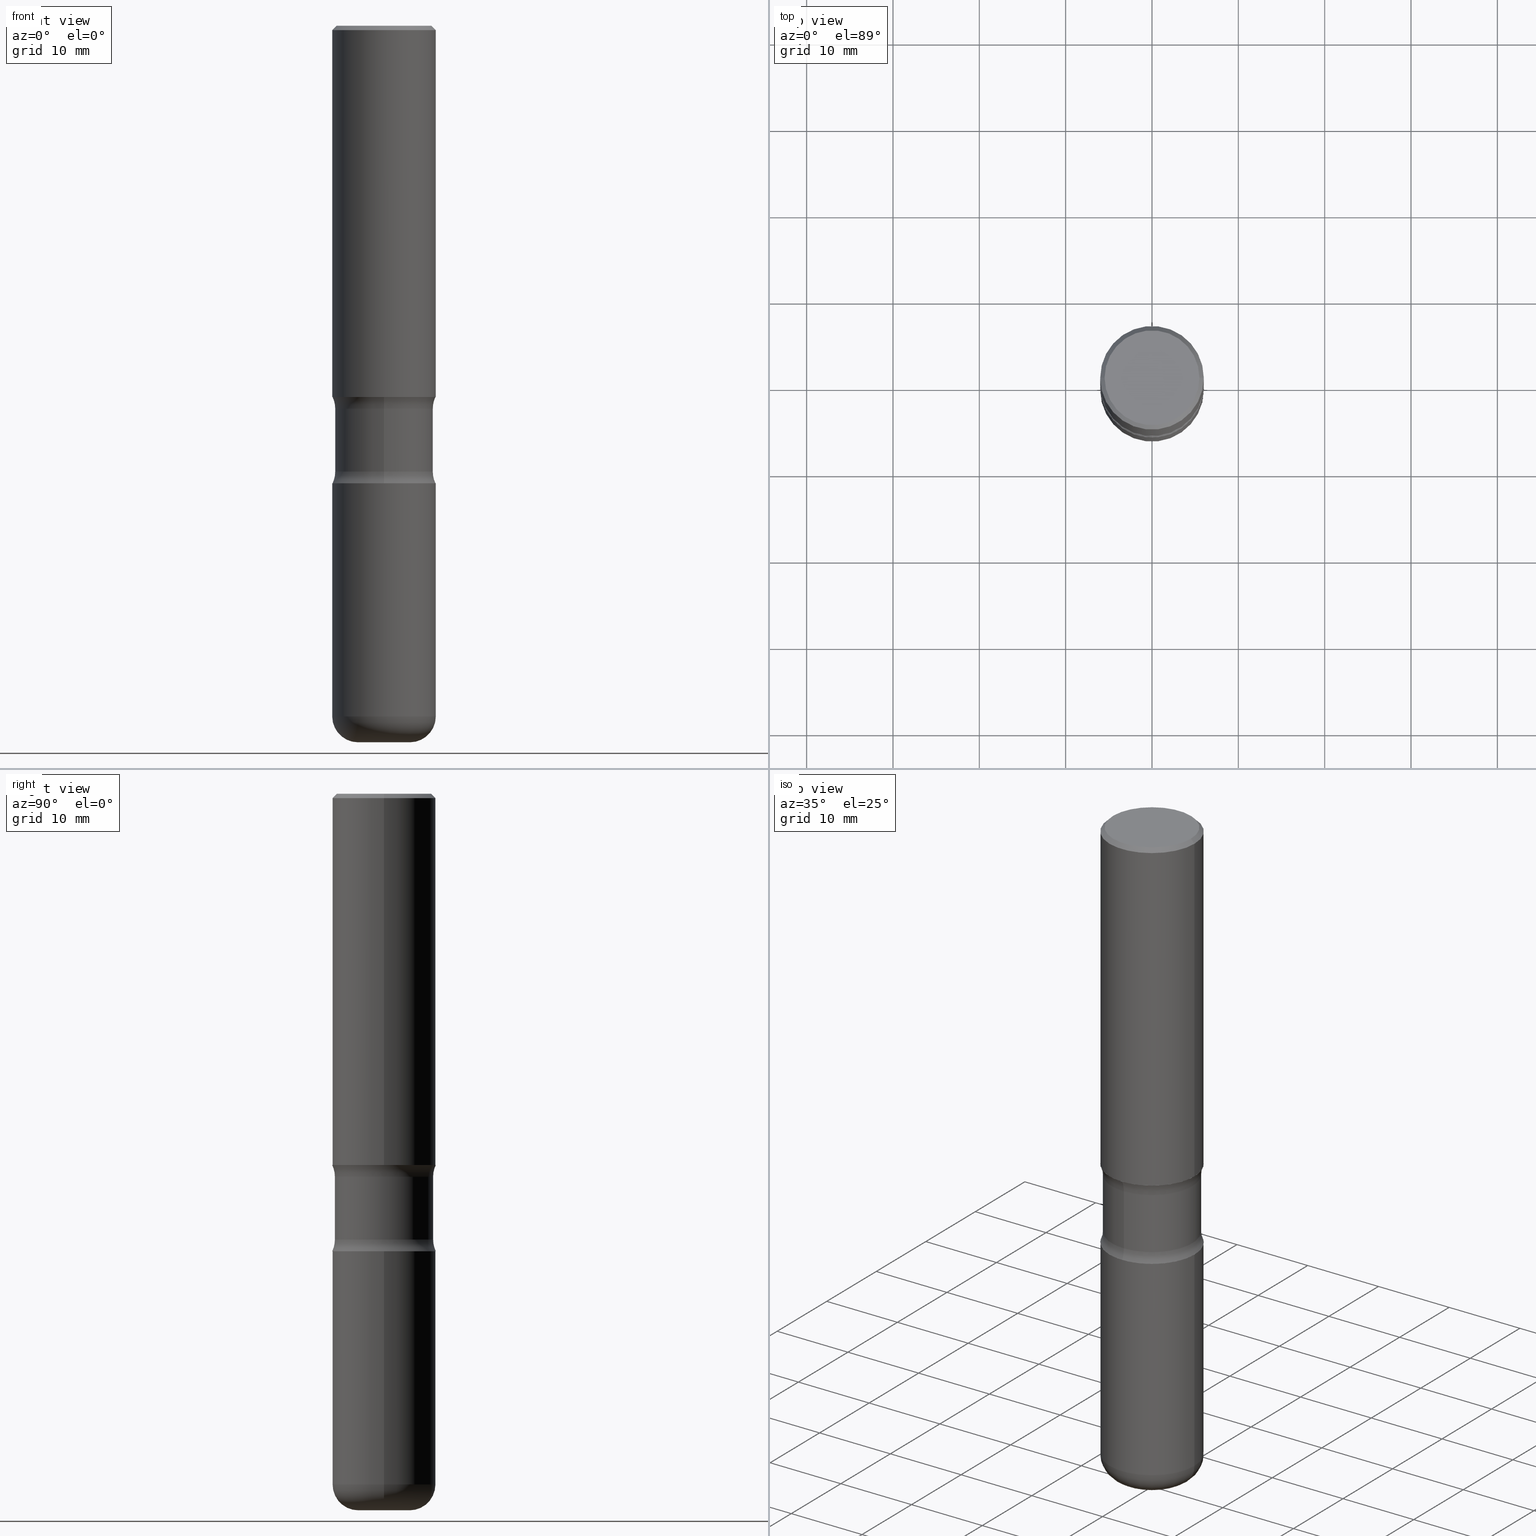
[diagram: canonical four-view strip — front | top / right | iso, engineering-drawing reading convention]
A machine part, canonical four-view strip (front | top / right | iso — engineering-drawing reading convention). The complete STEP part file that produces these views, byte-faithful:
ISO-10303-21;
HEADER;
FILE_DESCRIPTION (( 'STEP AP203' ),
    '1' );
FILE_NAME ('44746.STEP',
    '2024-03-02T02:41:58',
    ( '' ),
    ( '' ),
    'SwSTEP 2.0',
    'SolidWorks 2023',
    '' );
FILE_SCHEMA (( 'CONFIG_CONTROL_DESIGN' ));
ENDSEC;

DATA;
#1 = DIRECTION ( 'NONE',  ( 7.105427357601001859E-15, 1.000000000000000000, -3.491481338843145583E-15 ) ) ;
#2 = EDGE_LOOP ( 'NONE', ( #211, #9 ) ) ;
#3 = CIRCLE ( 'NONE', #320, 0.2362000000000002153 ) ;
#4 = CALENDAR_DATE ( 2024, 1, 3 ) ;
#5 = DIRECTION ( 'NONE',  ( 1.000000000000000000, -6.982962677686267499E-15, 0.000000000000000000 ) ) ;
#6 = ORIENTED_EDGE ( 'NONE', *, *, #171, .T. ) ;
#7 = DIRECTION ( 'NONE',  ( -0.7071067811865471286, 2.468850131082252722E-15, -0.7071067811865479058 ) ) ;
#8 = CARTESIAN_POINT ( 'NONE',  ( 7.702493098841325496E-29, -1.099711877295425582E-14, -3.149700000000000166 ) ) ;
#9 = ORIENTED_EDGE ( 'NONE', *, *, #37, .F. ) ;
#10 = PERSON_AND_ORGANIZATION_ROLE ( 'design_owner' ) ;
#11 = DIRECTION ( 'NONE',  ( 1.000000000000000000, -6.982962677686266711E-15, 4.876176775795935793E-29 ) ) ;
#12 = ORIENTED_EDGE ( 'NONE', *, *, #273, .F. ) ;
#13 = CIRCLE ( 'NONE', #244, 0.2362000000000001598 ) ;
#14 = AXIS2_PLACEMENT_3D ( 'NONE', #481, #521, #474 ) ;
#15 = PRODUCT_RELATED_PRODUCT_CATEGORY ( 'detail', '', ( #74 ) ) ;
#16 = VECTOR ( 'NONE', #369, 39.37007874015748143 ) ;
#17 = DIRECTION ( 'NONE',  ( 6.982962677686265922E-15, 1.000000000000000000, -3.563761628236091094E-15 ) ) ;
#18 = VERTEX_POINT ( 'NONE', #372 ) ;
#19 = ADVANCED_BREP_SHAPE_REPRESENTATION ( '44746', ( #377, #182, #554, #106 ), #340 ) ;
#20 = DIRECTION ( 'NONE',  ( -2.445468806185136597E-29, 3.491481338843145583E-15, 1.000000000000000000 ) ) ;
#21 = EDGE_LOOP ( 'NONE', ( #87, #457, #82, #153 ) ) ;
#22 = LINE ( 'NONE', #192, #16 ) ;
#23 = VERTEX_POINT ( 'NONE', #538 ) ;
#24 = UNCERTAINTY_MEASURE_WITH_UNIT (LENGTH_MEASURE( 1.000000000000000082E-05 ), #226, 'distance_accuracy_value', 'NONE');
#25 = ADVANCED_FACE ( 'NONE', ( #235 ), #410, .T. ) ;
#26 = AXIS2_PLACEMENT_3D ( 'NONE', #453, #322, #280 ) ;
#27 = DIRECTION ( 'NONE',  ( -2.445468806185136597E-29, 3.491481338843145583E-15, 1.000000000000000000 ) ) ;
#28 = AXIS2_PLACEMENT_3D ( 'NONE', #92, #309, #89 ) ;
#29 = ORIENTED_EDGE ( 'NONE', *, *, #132, .T. ) ;
#30 = DIRECTION ( 'NONE',  ( 1.000000000000000000, -6.982962677686266711E-15, 4.876176775795935793E-29 ) ) ;
#31 = PRODUCT_DEFINITION_SHAPE ( 'NONE', 'NONE',  #238 ) ;
#32 = CARTESIAN_POINT ( 'NONE',  ( 0.000000000000000000, 0.000000000000000000, 0.000000000000000000 ) ) ;
#33 = CC_DESIGN_PERSON_AND_ORGANIZATION_ASSIGNMENT ( #223, #10, ( #74 ) ) ;
#34 = CIRCLE ( 'NONE', #311, 0.1180000000000000770 ) ;
#35 = DIRECTION ( 'NONE',  ( 2.394995749868806294E-29, -3.563761628236091094E-15, -1.000000000000000000 ) ) ;
#36 = LOCAL_TIME ( 21, 41, 58.00000000000000000, #477 ) ;
#37 = EDGE_CURVE ( 'NONE', #23, #308, #13, .T. ) ;
#38 = CARTESIAN_POINT ( 'NONE',  ( 0.2362000000000002431, -1.649375784469497906E-15, 1.151752954443001209E-29 ) ) ;
#39 = DIRECTION ( 'NONE',  ( -2.445468806185136597E-29, 3.491481338843145583E-15, 1.000000000000000000 ) ) ;
#40 = EDGE_CURVE ( 'NONE', #393, #228, #328, .T. ) ;
#41 = CARTESIAN_POINT ( 'NONE',  ( -0.2162000000000000033, 1.544631344304202170E-15, -2.134256245051273683E-17 ) ) ;
#42 = VECTOR ( 'NONE', #291, 39.37007874015748143 ) ;
#43 = DIRECTION ( 'NONE',  ( 1.000000000000000000, -6.982962677686258822E-15, 0.000000000000000000 ) ) ;
#44 = ORIENTED_EDGE ( 'NONE', *, *, #80, .T. ) ;
#45 =( LENGTH_UNIT ( ) NAMED_UNIT ( * ) SI_UNIT ( $, .METRE. ) );
#46 = CARTESIAN_POINT ( 'NONE',  ( -0.1182000000000003326, -1.015725725928581524E-14, -3.149700000000000166 ) ) ;
#47 = ORIENTED_EDGE ( 'NONE', *, *, #353, .T. ) ;
#48 = ADVANCED_FACE ( 'NONE', ( #543 ), #71, .T. ) ;
#49 = DIRECTION ( 'NONE',  ( 1.000000000000000000, 0.000000000000000000, 0.000000000000000000 ) ) ;
#50 = CARTESIAN_POINT ( 'NONE',  ( 4.139934141990816676E-29, -5.910728758527559497E-15, -1.692899999999999627 ) ) ;
#51 = CLOSED_SHELL ( 'NONE', ( #534, #339, #60, #121, #493, #498 ) ) ;
#52 = ORIENTED_EDGE ( 'NONE', *, *, #413, .T. ) ;
#53 = CIRCLE ( 'NONE', #122, 0.2362000000000002709 ) ;
#54 = LENGTH_MEASURE_WITH_UNIT ( LENGTH_MEASURE( 0.02539999999999999897 ), #45 );
#55 = DIRECTION ( 'NONE',  ( 0.7071067811865471286, -7.319954787623254468E-15, -0.7071067811865479058 ) ) ;
#56 = ORIENTED_EDGE ( 'NONE', *, *, #296, .T. ) ;
#57 = COORDINATED_UNIVERSAL_TIME_OFFSET ( 5, 0, .BEHIND. ) ;
#58 = DIRECTION ( 'NONE',  ( 2.394995749868806294E-29, -3.563761628236091094E-15, -1.000000000000000000 ) ) ;
#59 = ORIENTED_EDGE ( 'NONE', *, *, #88, .F. ) ;
#60 = ADVANCED_FACE ( 'NONE', ( #490 ), #76, .T. ) ;
#61 = ORIENTED_EDGE ( 'NONE', *, *, #276, .T. ) ;
#62 = AXIS2_PLACEMENT_3D ( 'NONE', #32, #241, #208 ) ;
#63 = DIRECTION ( 'NONE',  ( 2.438088387897960049E-29, -3.491481338843145188E-15, -1.000000000000000000 ) ) ;
#64 = ORIENTED_EDGE ( 'NONE', *, *, #467, .T. ) ;
#65 = CARTESIAN_POINT ( 'NONE',  ( 4.139934141990816676E-29, -5.910728758527559497E-15, -1.692899999999999627 ) ) ;
#66 = EDGE_LOOP ( 'NONE', ( #269, #181 ) ) ;
#67 = EDGE_CURVE ( 'NONE', #237, #18, #494, .T. ) ;
#68 = PLANE ( 'NONE',  #187 ) ;
#69 = ORIENTED_EDGE ( 'NONE', *, *, #475, .F. ) ;
#70 = CIRCLE ( 'NONE', #300, 0.1250000000000000278 ) ;
#71 = CYLINDRICAL_SURFACE ( 'NONE', #319, 0.2362000000000002431 ) ;
#72 = APPROVAL_DATE_TIME ( #199, #542 ) ;
#73 = CC_DESIGN_DATE_AND_TIME_ASSIGNMENT ( #313, #488, ( #238 ) ) ;
#74 = PRODUCT ( '44746', '44746', '', ( #560 ) ) ;
#75 = DIRECTION ( 'NONE',  ( -1.000000000000000000, 6.982962677686265922E-15, -4.876176775795935793E-29 ) ) ;
#76 = CONICAL_SURFACE ( 'NONE', #149, 0.2362000000000000210, 0.7853981633974477239 ) ;
#77 = AXIS2_PLACEMENT_3D ( 'NONE', #125, #514, #78 ) ;
#78 = DIRECTION ( 'NONE',  ( -6.982962677686267499E-15, -1.000000000000000000, 0.000000000000000000 ) ) ;
#79 = DIRECTION ( 'NONE',  ( 1.000000000000000000, -6.982962677686261977E-15, 0.000000000000000000 ) ) ;
#80 = EDGE_CURVE ( 'NONE', #91, #191, #539, .T. ) ;
#81 = DIRECTION ( 'NONE',  ( 1.000000000000000000, -6.860497997771530774E-15, 4.839913701373677961E-29 ) ) ;
#82 = ORIENTED_EDGE ( 'NONE', *, *, #115, .F. ) ;
#83 = DIRECTION ( 'NONE',  ( -1.000000000000000000, 6.982962677686265922E-15, -4.876176775795935793E-29 ) ) ;
#84 = ORIENTED_EDGE ( 'NONE', *, *, #115, .T. ) ;
#85 = PLANE ( 'NONE',  #519 ) ;
#86 = CARTESIAN_POINT ( 'NONE',  ( -1.620449627073586564E-15, -0.2362000000000075151, -2.086599999999998456 ) ) ;
#87 = ORIENTED_EDGE ( 'NONE', *, *, #230, .T. ) ;
#88 = EDGE_CURVE ( 'NONE', #352, #111, #104, .T. ) ;
#89 = DIRECTION ( 'NONE',  ( 1.000000000000000000, -6.982962677686266711E-15, 4.876176775795935793E-29 ) ) ;
#90 = CARTESIAN_POINT ( 'NONE',  ( 0.2362000000000000210, -1.690279253850499166E-15, -0.02000000000000006981 ) ) ;
#91 = VERTEX_POINT ( 'NONE', #552 ) ;
#92 = CARTESIAN_POINT ( 'NONE',  ( 0.000000000000000000, 0.000000000000000000, 0.000000000000000000 ) ) ;
#93 = CARTESIAN_POINT ( 'NONE',  ( 7.931444691155953223E-29, -1.149448382073975340E-14, -3.267699999999999605 ) ) ;
#94 = ORIENTED_EDGE ( 'NONE', *, *, #382, .T. ) ;
#95 = VECTOR ( 'NONE', #551, 39.37007874015748143 ) ;
#96 = LOCAL_TIME ( 21, 41, 58.00000000000000000, #57 ) ;
#97 = CARTESIAN_POINT ( 'NONE',  ( 5.102715210985905155E-29, -7.285324961630105839E-15, -2.086599999999999344 ) ) ;
#98 = EDGE_LOOP ( 'NONE', ( #196, #261, #277, #219 ) ) ;
#99 = APPROVAL_DATE_TIME ( #390, #391 ) ;
#100 = DIRECTION ( 'NONE',  ( 2.394995749868806294E-29, -3.563761628236091094E-15, -1.000000000000000000 ) ) ;
#101 = CARTESIAN_POINT ( 'NONE',  ( 4.890937612370289799E-31, -6.982962677686315028E-17, -0.02000000000000006981 ) ) ;
#102 = CYLINDRICAL_SURFACE ( 'NONE', #207, 0.2362000000000002431 ) ;
#103 = ORIENTED_EDGE ( 'NONE', *, *, #396, .F. ) ;
#104 = CIRCLE ( 'NONE', #77, 0.1250000000000000278 ) ;
#105 = AXIS2_PLACEMENT_3D ( 'NONE', #478, #257, #343 ) ;
#106 = AXIS2_PLACEMENT_3D ( 'NONE', #303, #259, #49 ) ;
#107 = DIRECTION ( 'NONE',  ( 2.394995749868806294E-29, -3.563761628236091094E-15, -1.000000000000000000 ) ) ;
#108 = DIRECTION ( 'NONE',  ( 2.394995749868806294E-29, -3.563761628236091094E-15, -1.000000000000000000 ) ) ;
#109 = FACE_OUTER_BOUND ( 'NONE', #66, .T. ) ;
#110 = ORIENTED_EDGE ( 'NONE', *, *, #67, .T. ) ;
#111 = VERTEX_POINT ( 'NONE', #200 ) ;
#112 = CIRCLE ( 'NONE', #255, 0.2240000000000000324 ) ;
#113 = APPROVAL_PERSON_ORGANIZATION ( #212, #391, #141 ) ;
#114 = FACE_OUTER_BOUND ( 'NONE', #21, .T. ) ;
#115 = EDGE_CURVE ( 'NONE', #527, #253, #186, .T. ) ;
#116 = SECURITY_CLASSIFICATION_LEVEL ( 'unclassified' ) ;
#117 = CARTESIAN_POINT ( 'NONE',  ( 7.702493098841325496E-29, -1.099711877295425582E-14, -3.149700000000000166 ) ) ;
#118 = PERSON ( 'UNSPECIFIED', 'UNSPECIFIED', 'UNSPECIFIED', ('UNSPECIFIED'), ('UNSPECIFIED'), ('UNSPECIFIED') ) ;
#119 = DIRECTION ( 'NONE',  ( 2.438088387897960049E-29, -3.491481338843145188E-15, -1.000000000000000000 ) ) ;
#120 = APPROVAL_ROLE ( '' ) ;
#121 = ADVANCED_FACE ( 'NONE', ( #297 ), #508, .F. ) ;
#122 = AXIS2_PLACEMENT_3D ( 'NONE', #423, #468, #166 ) ;
#123 = CC_DESIGN_APPROVAL ( #391, ( #238 ) ) ;
#124 = DIRECTION ( 'NONE',  ( 1.000000000000000000, -6.982962677686269077E-15, 4.883557194083113462E-29 ) ) ;
#125 = CARTESIAN_POINT ( 'NONE',  ( 2.437053974512556244E-15, 0.3489999999999929270, -2.032737582675858690 ) ) ;
#126 = CARTESIAN_POINT ( 'NONE',  ( 1.649375784469548590E-15, 0.2361999999999929711, -2.086600000000000676 ) ) ;
#127 = DIRECTION ( 'NONE',  ( 1.000000000000000000, -6.982962677686269077E-15, 4.883557194083113462E-29 ) ) ;
#128 = CIRCLE ( 'NONE', #349, 0.2240000000000000324 ) ;
#129 = VERTEX_POINT ( 'NONE', #252 ) ;
#130 = APPROVAL_ROLE ( '' ) ;
#131 = CARTESIAN_POINT ( 'NONE',  ( -0.1182000000000003326, -9.944034444179100274E-15, -3.267700000000000049 ) ) ;
#132 = EDGE_CURVE ( 'NONE', #321, #198, #426, .T. ) ;
#133 = ORIENTED_EDGE ( 'NONE', *, *, #248, .T. ) ;
#134 =( NAMED_UNIT ( * ) PLANE_ANGLE_UNIT ( ) SI_UNIT ( $, .RADIAN. ) );
#135 = CARTESIAN_POINT ( 'NONE',  ( 5.102715210985905155E-29, -7.285324961630105839E-15, -2.086599999999999344 ) ) ;
#136 = EDGE_LOOP ( 'NONE', ( #471, #214, #407, #177 ) ) ;
#137 = CC_DESIGN_PERSON_AND_ORGANIZATION_ASSIGNMENT ( #383, #286, ( #466 ) ) ;
#138 = DIRECTION ( 'NONE',  ( 2.394995749868806294E-29, -3.563761628236091094E-15, -1.000000000000000000 ) ) ;
#139 = ORIENTED_EDGE ( 'NONE', *, *, #379, .F. ) ;
#140 = AXIS2_PLACEMENT_3D ( 'NONE', #147, #414, #489 ) ;
#141 = APPROVAL_ROLE ( '' ) ;
#142 = DIRECTION ( 'NONE',  ( -2.445468806185136877E-29, 3.491481338843145188E-15, 1.000000000000000000 ) ) ;
#143 = ORIENTED_EDGE ( 'NONE', *, *, #296, .F. ) ;
#144 = DIRECTION ( 'NONE',  ( -2.438088387897960049E-29, 3.491481338843145188E-15, 1.000000000000000000 ) ) ;
#145 = EDGE_LOOP ( 'NONE', ( #240, #189, #6, #59 ) ) ;
#146 = APPLICATION_CONTEXT ( 'configuration controlled 3d designs of mechanical parts and assemblies' ) ;
#147 = CARTESIAN_POINT ( 'NONE',  ( 4.159805384262556359E-29, -5.882272008593556915E-15, -1.692899999999999627 ) ) ;
#148 = DIRECTION ( 'NONE',  ( 2.394995749868806294E-29, -3.563761628236091094E-15, -1.000000000000000000 ) ) ;
#149 = AXIS2_PLACEMENT_3D ( 'NONE', #101, #272, #448 ) ;
#150 = AXIS2_PLACEMENT_3D ( 'NONE', #158, #331, #506 ) ;
#151 = VECTOR ( 'NONE', #7, 39.37007874015748143 ) ;
#152 = FACE_OUTER_BOUND ( 'NONE', #232, .T. ) ;
#153 = ORIENTED_EDGE ( 'NONE', *, *, #467, .F. ) ;
#154 = CARTESIAN_POINT ( 'NONE',  ( 0.000000000000000000, 0.000000000000000000, 0.000000000000000000 ) ) ;
#155 = FACE_OUTER_BOUND ( 'NONE', #418, .T. ) ;
#156 = COORDINATED_UNIVERSAL_TIME_OFFSET ( 5, 0, .BEHIND. ) ;
#157 = AXIS2_PLACEMENT_3D ( 'NONE', #50, #351, #5 ) ;
#158 = CARTESIAN_POINT ( 'NONE',  ( 5.102715210985905155E-29, -7.285324961630105839E-15, -2.086599999999999344 ) ) ;
#159 = DATE_AND_TIME ( #4, #36 ) ;
#160 = CARTESIAN_POINT ( 'NONE',  ( -2.394313801222220614E-15, -0.3490000000000059721, -1.746762417324140282 ) ) ;
#161 = PERSON_AND_ORGANIZATION ( #118, #174 ) ;
#162 = DIRECTION ( 'NONE',  ( -2.445468806185136597E-29, 3.491481338843145583E-15, 1.000000000000000000 ) ) ;
#163 = ADVANCED_FACE ( 'NONE', ( #114 ), #205, .T. ) ;
#164 = CIRCLE ( 'NONE', #140, 0.2362000000000001598 ) ;
#165 = LOCAL_TIME ( 21, 41, 58.00000000000000000, #523 ) ;
#166 = DIRECTION ( 'NONE',  ( 1.000000000000000000, -6.982962677686265133E-15, 0.000000000000000000 ) ) ;
#167 = CARTESIAN_POINT ( 'NONE',  ( 0.2362000000000004374, -7.560104542997059178E-15, -1.692899999999999627 ) ) ;
#168 = EDGE_CURVE ( 'NONE', #302, #91, #505, .T. ) ;
#169 = EDGE_LOOP ( 'NONE', ( #346, #434, #535, #281 ) ) ;
#170 = PERSON_AND_ORGANIZATION ( #118, #174 ) ;
#171 = EDGE_CURVE ( 'NONE', #129, #111, #112, .T. ) ;
#172 = FACE_OUTER_BOUND ( 'NONE', #363, .T. ) ;
#173 = AXIS2_PLACEMENT_3D ( 'NONE', #221, #388, #516 ) ;
#174 = ORGANIZATION ( 'UNSPECIFIED', 'UNSPECIFIED', '' ) ;
#175 = ORIENTED_EDGE ( 'NONE', *, *, #536, .T. ) ;
#176 = DIRECTION ( 'NONE',  ( -1.000000000000000000, 6.982962677686267499E-15, 0.000000000000000000 ) ) ;
#177 = ORIENTED_EDGE ( 'NONE', *, *, #132, .F. ) ;
#178 = DIRECTION ( 'NONE',  ( -6.982962677686265922E-15, -1.000000000000000000, 3.563761628236091094E-15 ) ) ;
#179 = PLANE ( 'NONE',  #278 ) ;
#180 = EDGE_CURVE ( 'NONE', #228, #23, #512, .T. ) ;
#181 = ORIENTED_EDGE ( 'NONE', *, *, #334, .F. ) ;
#182 = MANIFOLD_SOLID_BREP ( 'Body-Move/Copy2[2]', #51 ) ;
#183 = CALENDAR_DATE ( 2024, 1, 3 ) ;
#184 = FACE_OUTER_BOUND ( 'NONE', #306, .T. ) ;
#185 = ORIENTED_EDGE ( 'NONE', *, *, #435, .F. ) ;
#186 = CIRCLE ( 'NONE', #150, 0.2362000000000002153 ) ;
#187 = AXIS2_PLACEMENT_3D ( 'NONE', #540, #144, #491 ) ;
#188 = FACE_OUTER_BOUND ( 'NONE', #2, .T. ) ;
#189 = ORIENTED_EDGE ( 'NONE', *, *, #342, .T. ) ;
#190 = DIRECTION ( 'NONE',  ( 2.394995749868806294E-29, -3.563761628236091094E-15, -1.000000000000000000 ) ) ;
#191 = VERTEX_POINT ( 'NONE', #427 ) ;
#192 = CARTESIAN_POINT ( 'NONE',  ( 0.2362000000000002431, -1.649375784469497906E-15, 1.151752954443001209E-29 ) ) ;
#193 = ORIENTED_EDGE ( 'NONE', *, *, #37, .T. ) ;
#194 = CIRCLE ( 'NONE', #26, 0.1250000000000000000 ) ;
#195 = CIRCLE ( 'NONE', #419, 0.2362000000000000210 ) ;
#196 = ORIENTED_EDGE ( 'NONE', *, *, #248, .F. ) ;
#197 = EDGE_CURVE ( 'NONE', #18, #237, #201, .T. ) ;
#198 = VERTEX_POINT ( 'NONE', #289 ) ;
#199 = DATE_AND_TIME ( #292, #555 ) ;
#200 = CARTESIAN_POINT ( 'NONE',  ( 1.564183639801773497E-15, 0.2239999999999929270, -2.032737582675857801 ) ) ;
#201 = CIRCLE ( 'NONE', #381, 0.2162000000000000033 ) ;
#202 = CARTESIAN_POINT ( 'NONE',  ( 0.1182000000000003326, -1.182250496145677426E-14, -3.149700000000000166 ) ) ;
#203 = EDGE_CURVE ( 'NONE', #366, #253, #335, .T. ) ;
#204 = DIRECTION ( 'NONE',  ( 1.000000000000000000, -6.982962677686258822E-15, 0.000000000000000000 ) ) ;
#205 = CYLINDRICAL_SURFACE ( 'NONE', #62, 0.2362000000000002431 ) ;
#206 = CIRCLE ( 'NONE', #294, 0.2362000000000002153 ) ;
#207 = AXIS2_PLACEMENT_3D ( 'NONE', #231, #27, #11 ) ;
#208 = DIRECTION ( 'NONE',  ( 1.000000000000000000, -6.982962677686266711E-15, 4.876176775795935793E-29 ) ) ;
#209 = ADVANCED_FACE ( 'NONE', ( #511 ), #547, .T. ) ;
#210 = CYLINDRICAL_SURFACE ( 'NONE', #424, 0.2240000000000000602 ) ;
#211 = ORIENTED_EDGE ( 'NONE', *, *, #413, .F. ) ;
#212 = PERSON_AND_ORGANIZATION ( #118, #174 ) ;
#213 = CARTESIAN_POINT ( 'NONE',  ( -2.394313801222215092E-15, -0.3490000000000071378, -2.032737582675855581 ) ) ;
#214 = ORIENTED_EDGE ( 'NONE', *, *, #435, .T. ) ;
#215 = APPLICATION_PROTOCOL_DEFINITION ( 'international standard', 'config_control_design', 1994, #146 ) ;
#216 = AXIS2_PLACEMENT_3D ( 'NONE', #374, #323, #546 ) ;
#217 = DIRECTION ( 'NONE',  ( -2.445468806185136597E-29, 3.491481338843145583E-15, 1.000000000000000000 ) ) ;
#218 = AXIS2_PLACEMENT_3D ( 'NONE', #515, #263, #176 ) ;
#219 = ORIENTED_EDGE ( 'NONE', *, *, #171, .F. ) ;
#220 = ADVANCED_FACE ( 'NONE', ( #155 ), #246, .F. ) ;
#221 = CARTESIAN_POINT ( 'NONE',  ( 5.102715210985905155E-29, -7.285324961630105839E-15, -2.086599999999999344 ) ) ;
#222 = EDGE_LOOP ( 'NONE', ( #479, #133, #517, #139 ) ) ;
#223 = PERSON_AND_ORGANIZATION ( #118, #174 ) ;
#224 = LINE ( 'NONE', #90, #287 ) ;
#225 = EDGE_LOOP ( 'NONE', ( #445, #285, #64, #501 ) ) ;
#226 =( CONVERSION_BASED_UNIT ( 'INCH', #54 ) LENGTH_UNIT ( ) NAMED_UNIT ( #455 ) );
#227 = DIRECTION ( 'NONE',  ( 1.000000000000000000, -6.982962677686265133E-15, 0.000000000000000000 ) ) ;
#228 = VERTEX_POINT ( 'NONE', #385 ) ;
#229 = AXIS2_PLACEMENT_3D ( 'NONE', #341, #464, #249 ) ;
#230 = EDGE_CURVE ( 'NONE', #191, #366, #53, .T. ) ;
#231 = CARTESIAN_POINT ( 'NONE',  ( 0.000000000000000000, 0.000000000000000000, 0.000000000000000000 ) ) ;
#232 = EDGE_LOOP ( 'NONE', ( #185, #431, #29, #454 ) ) ;
#233 = ADVANCED_FACE ( 'NONE', ( #469 ), #395, .F. ) ;
#234 = CARTESIAN_POINT ( 'NONE',  ( 5.102715210985905155E-29, -7.285324961630105839E-15, -2.086599999999999344 ) ) ;
#235 = FACE_OUTER_BOUND ( 'NONE', #222, .T. ) ;
#236 = CARTESIAN_POINT ( 'NONE',  ( 4.319343984834906171E-29, -6.030492183638177096E-15, -1.746762417324141614 ) ) ;
#237 = VERTEX_POINT ( 'NONE', #41 ) ;
#238 = PRODUCT_DEFINITION ( 'UNKNOWN', '', #466, #325 ) ;
#239 = AXIS2_PLACEMENT_3D ( 'NONE', #274, #63, #447 ) ;
#240 = ORIENTED_EDGE ( 'NONE', *, *, #276, .F. ) ;
#241 = DIRECTION ( 'NONE',  ( -2.445468806185136597E-29, 3.491481338843145583E-15, 1.000000000000000000 ) ) ;
#242 = COORDINATED_UNIVERSAL_TIME_OFFSET ( 5, 0, .BEHIND. ) ;
#243 = CARTESIAN_POINT ( 'NONE',  ( -0.2362000000000002431, 1.678301941865358366E-15, -1.161852468318209878E-29 ) ) ;
#244 = AXIS2_PLACEMENT_3D ( 'NONE', #315, #108, #415 ) ;
#245 = EDGE_CURVE ( 'NONE', #198, #438, #386, .T. ) ;
#246 = TOROIDAL_SURFACE ( 'NONE', #518, 0.3489999999999999769, 0.1250000000000000000 ) ;
#247 = CC_DESIGN_SECURITY_CLASSIFICATION ( #350, ( #466 ) ) ;
#248 = EDGE_CURVE ( 'NONE', #228, #129, #357, .T. ) ;
#249 = DIRECTION ( 'NONE',  ( 1.000000000000000000, -6.982962677686266711E-15, 4.876655451117825523E-29 ) ) ;
#250 = APPROVAL_DATE_TIME ( #159, #550 ) ;
#251 = CARTESIAN_POINT ( 'NONE',  ( 1.509716530915770718E-15, 0.2162000000000000033, -7.655295466831390880E-16 ) ) ;
#252 = CARTESIAN_POINT ( 'NONE',  ( -1.578600589287179908E-15, -0.2240000000000071378, -2.032737582675856025 ) ) ;
#253 = VERTEX_POINT ( 'NONE', #524 ) ;
#254 = CLOSED_SHELL ( 'NONE', ( #25, #262, #220, #472, #406, #556, #233, #305 ) ) ;
#255 = AXIS2_PLACEMENT_3D ( 'NONE', #548, #384, #507 ) ;
#256 = ORIENTED_EDGE ( 'NONE', *, *, #273, .T. ) ;
#257 = DIRECTION ( 'NONE',  ( -2.445468806185136597E-29, 3.491481338843145583E-15, 1.000000000000000000 ) ) ;
#258 = VERTEX_POINT ( 'NONE', #86 ) ;
#259 = DIRECTION ( 'NONE',  ( 0.000000000000000000, 0.000000000000000000, 1.000000000000000000 ) ) ;
#260 = CARTESIAN_POINT ( 'NONE',  ( 4.288805644831536135E-29, -6.074224824657373494E-15, -1.746762417324141614 ) ) ;
#261 = ORIENTED_EDGE ( 'NONE', *, *, #298, .T. ) ;
#262 = ADVANCED_FACE ( 'NONE', ( #526 ), #553, .F. ) ;
#263 = DIRECTION ( 'NONE',  ( 2.445468806185136597E-29, -3.491481338843145583E-15, -1.000000000000000000 ) ) ;
#264 = AXIS2_PLACEMENT_3D ( 'NONE', #387, #327, #557 ) ;
#265 = AXIS2_PLACEMENT_3D ( 'NONE', #500, #20, #449 ) ;
#266 = ORIENTED_EDGE ( 'NONE', *, *, #40, .F. ) ;
#267 = APPLICATION_PROTOCOL_DEFINITION ( 'international standard', 'config_control_design', 1994, #376 ) ;
#268 = DIRECTION ( 'NONE',  ( 2.438088387897960049E-29, -3.491481338843145188E-15, -1.000000000000000000 ) ) ;
#269 = ORIENTED_EDGE ( 'NONE', *, *, #443, .F. ) ;
#270 = FACE_OUTER_BOUND ( 'NONE', #136, .T. ) ;
#271 = DIRECTION ( 'NONE',  ( -2.445468806185136597E-29, 3.491481338843145583E-15, 1.000000000000000000 ) ) ;
#272 = DIRECTION ( 'NONE',  ( 2.445468806185136597E-29, -3.491481338843145583E-15, -1.000000000000000000 ) ) ;
#273 = EDGE_CURVE ( 'NONE', #91, #302, #465, .T. ) ;
#274 = CARTESIAN_POINT ( 'NONE',  ( -2.556475936767841241E-29, -2.651378309529761210E-14, -3.267699999999999605 ) ) ;
#275 = AXIS2_PLACEMENT_3D ( 'NONE', #378, #148, #499 ) ;
#276 = EDGE_CURVE ( 'NONE', #258, #352, #206, .T. ) ;
#277 = ORIENTED_EDGE ( 'NONE', *, *, #379, .T. ) ;
#278 = AXIS2_PLACEMENT_3D ( 'NONE', #97, #268, #83 ) ;
#279 = AXIS2_PLACEMENT_3D ( 'NONE', #236, #100, #282 ) ;
#280 = DIRECTION ( 'NONE',  ( -6.982962677686266711E-15, -1.000000000000000000, 0.000000000000000000 ) ) ;
#281 = ORIENTED_EDGE ( 'NONE', *, *, #545, .F. ) ;
#282 = DIRECTION ( 'NONE',  ( 6.982962677686265133E-15, 1.000000000000000000, -3.563761628236091094E-15 ) ) ;
#283 = ORIENTED_EDGE ( 'NONE', *, *, #168, .F. ) ;
#284 = ADVANCED_FACE ( 'NONE', ( #430 ), #179, .F. ) ;
#285 = ORIENTED_EDGE ( 'NONE', *, *, #475, .T. ) ;
#286 = PERSON_AND_ORGANIZATION_ROLE ( 'design_supplier' ) ;
#287 = VECTOR ( 'NONE', #55, 39.37007874015748143 ) ;
#288 = APPROVAL_PERSON_ORGANIZATION ( #170, #550, #130 ) ;
#289 = CARTESIAN_POINT ( 'NONE',  ( 0.2362000000000000210, -1.690279253850499166E-15, -0.02000000000000006981 ) ) ;
#290 = DIRECTION ( 'NONE',  ( 1.000000000000000000, -6.982962677686266711E-15, 4.876655451117825523E-29 ) ) ;
#291 = DIRECTION ( 'NONE',  ( -2.445468806185136877E-29, 3.491481338843145188E-15, 1.000000000000000000 ) ) ;
#292 = CALENDAR_DATE ( 2024, 1, 3 ) ;
#293 = EDGE_CURVE ( 'NONE', #18, #198, #224, .T. ) ;
#294 = AXIS2_PLACEMENT_3D ( 'NONE', #135, #138, #345 ) ;
#295 = DIRECTION ( 'NONE',  ( 6.982962677686265133E-15, 1.000000000000000000, -3.563761628236091094E-15 ) ) ;
#296 = EDGE_CURVE ( 'NONE', #302, #366, #34, .T. ) ;
#297 = FACE_OUTER_BOUND ( 'NONE', #389, .T. ) ;
#298 = EDGE_CURVE ( 'NONE', #228, #393, #128, .T. ) ;
#299 = DIRECTION ( 'NONE',  ( 6.860497997771532351E-15, 1.000000000000000000, 0.000000000000000000 ) ) ;
#300 = AXIS2_PLACEMENT_3D ( 'NONE', #213, #440, #299 ) ;
#301 = CARTESIAN_POINT ( 'NONE',  ( -0.2362000000000003264, -9.318816831088897849E-15, -3.149700000000000166 ) ) ;
#302 = VERTEX_POINT ( 'NONE', #131 ) ;
#303 = CARTESIAN_POINT ( 'NONE',  ( 0.000000000000000000, 0.000000000000000000, 0.000000000000000000 ) ) ;
#304 = LINE ( 'NONE', #531, #495 ) ;
#305 = ADVANCED_FACE ( 'NONE', ( #310 ), #210, .T. ) ;
#306 = EDGE_LOOP ( 'NONE', ( #12, #283 ) ) ;
#307 = DIRECTION ( 'NONE',  ( 6.982962677686265922E-15, 1.000000000000000000, -2.439149994343091666E-15 ) ) ;
#308 = VERTEX_POINT ( 'NONE', #558 ) ;
#309 = DIRECTION ( 'NONE',  ( -2.445468806185136597E-29, 3.491481338843145583E-15, 1.000000000000000000 ) ) ;
#310 = FACE_OUTER_BOUND ( 'NONE', #98, .T. ) ;
#311 = AXIS2_PLACEMENT_3D ( 'NONE', #46, #1, #486 ) ;
#312 = EDGE_LOOP ( 'NONE', ( #84, #94 ) ) ;
#313 = DATE_AND_TIME ( #183, #165 ) ;
#314 = CARTESIAN_POINT ( 'NONE',  ( 1.564183639801766791E-15, 0.2239999999999939539, -1.746762417324142502 ) ) ;
#315 = CARTESIAN_POINT ( 'NONE',  ( 4.159805384262556359E-29, -5.882272008593556915E-15, -1.692899999999999627 ) ) ;
#316 = DIRECTION ( 'NONE',  ( 2.394995749868806294E-29, -3.563761628236091094E-15, -1.000000000000000000 ) ) ;
#317 = ORIENTED_EDGE ( 'NONE', *, *, #396, .T. ) ;
#318 = LINE ( 'NONE', #365, #373 ) ;
#319 = AXIS2_PLACEMENT_3D ( 'NONE', #154, #324, #30 ) ;
#320 = AXIS2_PLACEMENT_3D ( 'NONE', #234, #533, #496 ) ;
#321 = VERTEX_POINT ( 'NONE', #167 ) ;
#322 = DIRECTION ( 'NONE',  ( -1.000000000000000000, 6.982962677686265922E-15, -4.883557194083112340E-29 ) ) ;
#323 = DIRECTION ( 'NONE',  ( 2.394995749868806294E-29, -3.563761628236091094E-15, -1.000000000000000000 ) ) ;
#324 = DIRECTION ( 'NONE',  ( -2.445468806185136597E-29, 3.491481338843145583E-15, 1.000000000000000000 ) ) ;
#325 = DESIGN_CONTEXT ( 'detailed design', #376, 'design' ) ;
#326 = DATE_AND_TIME ( #544, #473 ) ;
#327 = DIRECTION ( 'NONE',  ( 2.394995749868806294E-29, -3.563761628236091094E-15, -1.000000000000000000 ) ) ;
#328 = CIRCLE ( 'NONE', #216, 0.2240000000000000324 ) ;
#329 = AXIS2_PLACEMENT_3D ( 'NONE', #355, #392, #43 ) ;
#330 = CIRCLE ( 'NONE', #397, 0.2362000000000002709 ) ;
#331 = DIRECTION ( 'NONE',  ( -2.445468806185136597E-29, 3.491481338843145583E-15, 1.000000000000000000 ) ) ;
#332 = CC_DESIGN_PERSON_AND_ORGANIZATION_ASSIGNMENT ( #462, #510, ( #350 ) ) ;
#333 = PERSON_AND_ORGANIZATION ( #118, #174 ) ;
#334 = EDGE_CURVE ( 'NONE', #356, #321, #409, .T. ) ;
#335 = LINE ( 'NONE', #243, #42 ) ;
#336 = PERSON_AND_ORGANIZATION_ROLE ( 'creator' ) ;
#337 = DIRECTION ( 'NONE',  ( -6.982962677686266711E-15, -1.000000000000000000, 3.491481338843145583E-15 ) ) ;
#338 = TOROIDAL_SURFACE ( 'NONE', #348, 0.1182000000000003326, 0.1180000000000000770 ) ;
#339 = ADVANCED_FACE ( 'NONE', ( #470 ), #371, .T. ) ;
#340 =( GEOMETRIC_REPRESENTATION_CONTEXT ( 3 ) GLOBAL_UNCERTAINTY_ASSIGNED_CONTEXT ( ( #24 ) ) GLOBAL_UNIT_ASSIGNED_CONTEXT ( ( #226, #134, #432 ) ) REPRESENTATION_CONTEXT ( 'NONE', 'WORKASPACE' ) );
#341 = CARTESIAN_POINT ( 'NONE',  ( 5.219257071676098903E-46, -7.451715851902235727E-32, -2.134256245050205639E-17 ) ) ;
#342 = EDGE_CURVE ( 'NONE', #258, #129, #70, .T. ) ;
#343 = DIRECTION ( 'NONE',  ( 1.000000000000000000, -6.982962677686267499E-15, 0.000000000000000000 ) ) ;
#344 = CARTESIAN_POINT ( 'NONE',  ( 4.890937612370289799E-31, -6.982962677686315028E-17, -0.02000000000000006981 ) ) ;
#345 = DIRECTION ( 'NONE',  ( 6.982962677686265133E-15, 1.000000000000000000, -3.469747663417773847E-15 ) ) ;
#346 = ORIENTED_EDGE ( 'NONE', *, *, #197, .F. ) ;
#347 = APPROVAL_STATUS ( 'not_yet_approved' ) ;
#348 = AXIS2_PLACEMENT_3D ( 'NONE', #8, #217, #127 ) ;
#349 = AXIS2_PLACEMENT_3D ( 'NONE', #260, #444, #437 ) ;
#350 = SECURITY_CLASSIFICATION ( '', '', #116 ) ;
#351 = DIRECTION ( 'NONE',  ( -2.445468806185136597E-29, 3.491481338843145583E-15, 1.000000000000000000 ) ) ;
#352 = VERTEX_POINT ( 'NONE', #126 ) ;
#353 = EDGE_CURVE ( 'NONE', #352, #258, #458, .T. ) ;
#354 = PERSON_AND_ORGANIZATION_ROLE ( 'creator' ) ;
#355 = CARTESIAN_POINT ( 'NONE',  ( 7.991058417971171713E-29, -1.140911357093774644E-14, -3.267700000000000049 ) ) ;
#356 = VERTEX_POINT ( 'NONE', #401 ) ;
#357 = LINE ( 'NONE', #398, #439 ) ;
#358 = ORIENTED_EDGE ( 'NONE', *, *, #180, .F. ) ;
#359 = DIRECTION ( 'NONE',  ( 1.000000000000000000, -6.982962677686267499E-15, 0.000000000000000000 ) ) ;
#360 = PLANE ( 'NONE',  #239 ) ;
#361 = AXIS2_PLACEMENT_3D ( 'NONE', #549, #380, #204 ) ;
#362 = CIRCLE ( 'NONE', #513, 0.2240000000000000324 ) ;
#363 = EDGE_LOOP ( 'NONE', ( #143, #522, #44, #69 ) ) ;
#364 = ADVANCED_FACE ( 'NONE', ( #172 ), #338, .T. ) ;
#365 = CARTESIAN_POINT ( 'NONE',  ( -0.2362000000000002431, 1.678301941865358366E-15, -1.161852468318209878E-29 ) ) ;
#366 = VERTEX_POINT ( 'NONE', #301 ) ;
#367 = DIRECTION ( 'NONE',  ( 6.982962677686265922E-15, 1.000000000000000000, -3.658724991514637697E-15 ) ) ;
#368 = EDGE_LOOP ( 'NONE', ( #420, #402, #441, #525 ) ) ;
#369 = DIRECTION ( 'NONE',  ( -2.445468806185136877E-29, 3.491481338843145188E-15, 1.000000000000000000 ) ) ;
#370 = CLOSED_SHELL ( 'NONE', ( #163, #209, #502, #364, #48, #284 ) ) ;
#371 = CONICAL_SURFACE ( 'NONE', #218, 0.2362000000000000210, 0.7853981633974477239 ) ;
#372 = CARTESIAN_POINT ( 'NONE',  ( 0.2162000000000000033, -1.586759460484351988E-15, -2.134256245049122805E-17 ) ) ;
#373 = VECTOR ( 'NONE', #142, 39.37007874015748143 ) ;
#374 = CARTESIAN_POINT ( 'NONE',  ( 4.288805644831536135E-29, -6.074224824657373494E-15, -1.746762417324141614 ) ) ;
#375 = APPROVAL_STATUS ( 'not_yet_approved' ) ;
#376 = APPLICATION_CONTEXT ( 'configuration controlled 3d designs of mechanical parts and assemblies' ) ;
#377 = MANIFOLD_SOLID_BREP ( 'Body-Move/Copy2[1]', #370 ) ;
#378 = CARTESIAN_POINT ( 'NONE',  ( 7.931444691155953223E-29, -1.149448382073975340E-14, -3.267699999999999605 ) ) ;
#379 = EDGE_CURVE ( 'NONE', #393, #111, #304, .T. ) ;
#380 = DIRECTION ( 'NONE',  ( -2.445468806185136597E-29, 3.491481338843145583E-15, 1.000000000000000000 ) ) ;
#381 = AXIS2_PLACEMENT_3D ( 'NONE', #461, #162, #290 ) ;
#382 = EDGE_CURVE ( 'NONE', #253, #527, #3, .T. ) ;
#383 = PERSON_AND_ORGANIZATION ( #118, #174 ) ;
#384 = DIRECTION ( 'NONE',  ( 2.394995749868806294E-29, -3.563761628236091094E-15, -1.000000000000000000 ) ) ;
#385 = CARTESIAN_POINT ( 'NONE',  ( -1.578600589287187205E-15, -0.2240000000000060554, -1.746762417324140948 ) ) ;
#386 = CIRCLE ( 'NONE', #105, 0.2362000000000000210 ) ;
#387 = CARTESIAN_POINT ( 'NONE',  ( 4.970996349593988769E-29, -7.097265336677881413E-15, -2.032737582675857357 ) ) ;
#388 = DIRECTION ( 'NONE',  ( 2.394995749868806294E-29, -3.563761628236091094E-15, -1.000000000000000000 ) ) ;
#389 = EDGE_LOOP ( 'NONE', ( #110, #492 ) ) ;
#390 = DATE_AND_TIME ( #394, #96 ) ;
#391 = APPROVAL ( #442, 'UNSPECIFIED' ) ;
#392 = DIRECTION ( 'NONE',  ( -2.445468806185136597E-29, 3.491481338843145583E-15, 1.000000000000000000 ) ) ;
#393 = VERTEX_POINT ( 'NONE', #314 ) ;
#394 = CALENDAR_DATE ( 2024, 1, 3 ) ;
#395 = TOROIDAL_SURFACE ( 'NONE', #264, 0.3490000000000000324, 0.1250000000000000555 ) ;
#396 = EDGE_CURVE ( 'NONE', #393, #308, #194, .T. ) ;
#397 = AXIS2_PLACEMENT_3D ( 'NONE', #405, #271, #227 ) ;
#398 = CARTESIAN_POINT ( 'NONE',  ( -1.536751551500743867E-15, -0.2240000000000115510, -3.267699999999999161 ) ) ;
#399 = ORIENTED_EDGE ( 'NONE', *, *, #293, .F. ) ;
#400 = DIRECTION ( 'NONE',  ( -2.445468806185136597E-29, 3.491481338843145583E-15, 1.000000000000000000 ) ) ;
#401 = CARTESIAN_POINT ( 'NONE',  ( -0.2362000000000004374, -1.311977250786849481E-15, -1.692899999999999627 ) ) ;
#402 = ORIENTED_EDGE ( 'NONE', *, *, #353, .F. ) ;
#403 = CC_DESIGN_PERSON_AND_ORGANIZATION_ASSIGNMENT ( #404, #354, ( #238 ) ) ;
#404 = PERSON_AND_ORGANIZATION ( #118, #174 ) ;
#405 = CARTESIAN_POINT ( 'NONE',  ( 7.702493098841325496E-29, -1.099711877295425582E-14, -3.149700000000000166 ) ) ;
#406 = ADVANCED_FACE ( 'NONE', ( #188 ), #456, .F. ) ;
#407 = ORIENTED_EDGE ( 'NONE', *, *, #245, .F. ) ;
#408 = CARTESIAN_POINT ( 'NONE',  ( -0.2362000000000000210, 1.579546157692633424E-15, -0.02000000000000006981 ) ) ;
#409 = CIRCLE ( 'NONE', #157, 0.2362000000000004374 ) ;
#410 = CYLINDRICAL_SURFACE ( 'NONE', #275, 0.2240000000000000602 ) ;
#411 = CARTESIAN_POINT ( 'NONE',  ( 4.973714950416923137E-29, -7.093372145566288471E-15, -2.032737582675856913 ) ) ;
#412 = EDGE_LOOP ( 'NONE', ( #399, #482, #459, #175 ) ) ;
#413 = EDGE_CURVE ( 'NONE', #308, #23, #164, .T. ) ;
#414 = DIRECTION ( 'NONE',  ( 2.394995749868806294E-29, -3.563761628236091094E-15, -1.000000000000000000 ) ) ;
#415 = DIRECTION ( 'NONE',  ( 6.982962677686265922E-15, 1.000000000000000000, -3.469747663417774636E-15 ) ) ;
#416 = FACE_OUTER_BOUND ( 'NONE', #532, .T. ) ;
#417 = AXIS2_PLACEMENT_3D ( 'NONE', #65, #316, #17 ) ;
#418 = EDGE_LOOP ( 'NONE', ( #541, #503, #193, #103 ) ) ;
#419 = AXIS2_PLACEMENT_3D ( 'NONE', #344, #400, #359 ) ;
#420 = ORIENTED_EDGE ( 'NONE', *, *, #342, .F. ) ;
#421 = DIRECTION ( 'NONE',  ( 6.860497997771529985E-15, 1.000000000000000000, 0.000000000000000000 ) ) ;
#422 = SHAPE_DEFINITION_REPRESENTATION ( #31, #19 ) ;
#423 = CARTESIAN_POINT ( 'NONE',  ( 7.702493098841325496E-29, -1.099711877295425582E-14, -3.149700000000000166 ) ) ;
#424 = AXIS2_PLACEMENT_3D ( 'NONE', #93, #58, #307 ) ;
#425 = APPROVAL_PERSON_ORGANIZATION ( #333, #542, #120 ) ;
#426 = LINE ( 'NONE', #38, #95 ) ;
#427 = CARTESIAN_POINT ( 'NONE',  ( 0.2362000000000003264, -1.264649455742375392E-14, -3.149700000000000166 ) ) ;
#428 = AXIS2_PLACEMENT_3D ( 'NONE', #251, #119, #75 ) ;
#429 = CIRCLE ( 'NONE', #265, 0.2362000000000004374 ) ;
#430 = FACE_OUTER_BOUND ( 'NONE', #312, .T. ) ;
#431 = ORIENTED_EDGE ( 'NONE', *, *, #334, .T. ) ;
#432 =( NAMED_UNIT ( * ) SI_UNIT ( $, .STERADIAN. ) SOLID_ANGLE_UNIT ( ) );
#433 = DIRECTION ( 'NONE',  ( 2.394995749868806294E-29, -3.563761628236091094E-15, -1.000000000000000000 ) ) ;
#434 = ORIENTED_EDGE ( 'NONE', *, *, #293, .T. ) ;
#435 = EDGE_CURVE ( 'NONE', #356, #438, #318, .T. ) ;
#436 = DIRECTION ( 'NONE',  ( -2.394995749868806294E-29, 3.563761628236091094E-15, 1.000000000000000000 ) ) ;
#437 = DIRECTION ( 'NONE',  ( 6.982962677686265922E-15, 1.000000000000000000, -3.658724991514637697E-15 ) ) ;
#438 = VERTEX_POINT ( 'NONE', #408 ) ;
#439 = VECTOR ( 'NONE', #433, 39.37007874015748143 ) ;
#440 = DIRECTION ( 'NONE',  ( 1.000000000000000000, -6.860497997771530774E-15, 4.839913701373677961E-29 ) ) ;
#441 = ORIENTED_EDGE ( 'NONE', *, *, #88, .T. ) ;
#442 = APPROVAL_STATUS ( 'not_yet_approved' ) ;
#443 = EDGE_CURVE ( 'NONE', #321, #356, #429, .T. ) ;
#444 = DIRECTION ( 'NONE',  ( 2.394995749868806294E-29, -3.563761628236091094E-15, -1.000000000000000000 ) ) ;
#445 = ORIENTED_EDGE ( 'NONE', *, *, #203, .F. ) ;
#446 = CARTESIAN_POINT ( 'NONE',  ( -0.2362000000000000210, 1.579546157692633424E-15, -0.02000000000000006981 ) ) ;
#447 = DIRECTION ( 'NONE',  ( -1.000000000000000000, 6.982962677686265922E-15, -4.876176775795935793E-29 ) ) ;
#448 = DIRECTION ( 'NONE',  ( -1.000000000000000000, 6.982962677686267499E-15, 0.000000000000000000 ) ) ;
#449 = DIRECTION ( 'NONE',  ( 1.000000000000000000, -6.982962677686267499E-15, 0.000000000000000000 ) ) ;
#450 = AXIS2_PLACEMENT_3D ( 'NONE', #160, #81, #421 ) ;
#451 = EDGE_LOOP ( 'NONE', ( #256, #56, #476, #559 ) ) ;
#452 = CC_DESIGN_PERSON_AND_ORGANIZATION_ASSIGNMENT ( #161, #336, ( #466 ) ) ;
#453 = CARTESIAN_POINT ( 'NONE',  ( 2.437053974512549538E-15, 0.3489999999999939262, -1.746762417324142946 ) ) ;
#454 = ORIENTED_EDGE ( 'NONE', *, *, #536, .F. ) ;
#455 = DIMENSIONAL_EXPONENTS ( 1.000000000000000000, 0.000000000000000000, 0.000000000000000000, 0.000000000000000000, 0.000000000000000000, 0.000000000000000000, 0.000000000000000000 ) ;
#456 = PLANE ( 'NONE',  #417 ) ;
#457 = ORIENTED_EDGE ( 'NONE', *, *, #203, .T. ) ;
#458 = CIRCLE ( 'NONE', #173, 0.2362000000000002153 ) ;
#459 = ORIENTED_EDGE ( 'NONE', *, *, #545, .T. ) ;
#460 = CC_DESIGN_DATE_AND_TIME_ASSIGNMENT ( #326, #504, ( #350 ) ) ;
#461 = CARTESIAN_POINT ( 'NONE',  ( 5.219257071676098903E-46, -7.451715851902235727E-32, -2.134256245050205639E-17 ) ) ;
#462 = PERSON_AND_ORGANIZATION ( #118, #174 ) ;
#463 = CARTESIAN_POINT ( 'NONE',  ( 4.319343984834906171E-29, -6.030492183638177096E-15, -1.746762417324141614 ) ) ;
#464 = DIRECTION ( 'NONE',  ( -2.445468806185136597E-29, 3.491481338843145583E-15, 1.000000000000000000 ) ) ;
#465 = CIRCLE ( 'NONE', #329, 0.1182000000000003326 ) ;
#466 = PRODUCT_DEFINITION_FORMATION_WITH_SPECIFIED_SOURCE ( 'ANY', '', #74, .NOT_KNOWN. ) ;
#467 = EDGE_CURVE ( 'NONE', #191, #527, #22, .T. ) ;
#468 = DIRECTION ( 'NONE',  ( -2.445468806185136597E-29, 3.491481338843145583E-15, 1.000000000000000000 ) ) ;
#469 = FACE_OUTER_BOUND ( 'NONE', #368, .T. ) ;
#470 = FACE_OUTER_BOUND ( 'NONE', #169, .T. ) ;
#471 = ORIENTED_EDGE ( 'NONE', *, *, #443, .T. ) ;
#472 = ADVANCED_FACE ( 'NONE', ( #416 ), #530, .F. ) ;
#473 = LOCAL_TIME ( 21, 41, 58.00000000000000000, #242 ) ;
#474 = DIRECTION ( 'NONE',  ( 6.982962677686265133E-15, 1.000000000000000000, -3.563761628236091094E-15 ) ) ;
#475 = EDGE_CURVE ( 'NONE', #366, #191, #330, .T. ) ;
#476 = ORIENTED_EDGE ( 'NONE', *, *, #230, .F. ) ;
#477 = COORDINATED_UNIVERSAL_TIME_OFFSET ( 5, 0, .BEHIND. ) ;
#478 = CARTESIAN_POINT ( 'NONE',  ( 4.890937612370289799E-31, -6.982962677686315028E-17, -0.02000000000000006981 ) ) ;
#479 = ORIENTED_EDGE ( 'NONE', *, *, #40, .T. ) ;
#480 = FACE_OUTER_BOUND ( 'NONE', #487, .T. ) ;
#481 = CARTESIAN_POINT ( 'NONE',  ( 4.970996349593988769E-29, -7.097265336677881413E-15, -2.032737582675857357 ) ) ;
#482 = ORIENTED_EDGE ( 'NONE', *, *, #67, .F. ) ;
#483 = LINE ( 'NONE', #446, #151 ) ;
#484 = AXIS2_PLACEMENT_3D ( 'NONE', #202, #337, #79 ) ;
#485 = CC_DESIGN_APPROVAL ( #550, ( #466 ) ) ;
#486 = DIRECTION ( 'NONE',  ( -1.000000000000000000, 7.105427357600993181E-15, 0.000000000000000000 ) ) ;
#487 = EDGE_LOOP ( 'NONE', ( #47, #61 ) ) ;
#488 = DATE_TIME_ROLE ( 'creation_date' ) ;
#489 = DIRECTION ( 'NONE',  ( 6.982962677686265922E-15, 1.000000000000000000, -3.469747663417774636E-15 ) ) ;
#490 = FACE_OUTER_BOUND ( 'NONE', #412, .T. ) ;
#491 = DIRECTION ( 'NONE',  ( 1.000000000000000000, -6.982962677686265922E-15, 4.876176775795935793E-29 ) ) ;
#492 = ORIENTED_EDGE ( 'NONE', *, *, #197, .T. ) ;
#493 = ADVANCED_FACE ( 'NONE', ( #109 ), #68, .F. ) ;
#494 = CIRCLE ( 'NONE', #229, 0.2162000000000000033 ) ;
#495 = VECTOR ( 'NONE', #107, 39.37007874015748143 ) ;
#496 = DIRECTION ( 'NONE',  ( 1.000000000000000000, -6.982962677686266711E-15, 0.000000000000000000 ) ) ;
#497 = CC_DESIGN_APPROVAL ( #542, ( #350 ) ) ;
#498 = ADVANCED_FACE ( 'NONE', ( #152 ), #102, .T. ) ;
#499 = DIRECTION ( 'NONE',  ( 6.982962677686265922E-15, 1.000000000000000000, -2.439149994343091666E-15 ) ) ;
#500 = CARTESIAN_POINT ( 'NONE',  ( 4.139934141990816676E-29, -5.910728758527559497E-15, -1.692899999999999627 ) ) ;
#501 = ORIENTED_EDGE ( 'NONE', *, *, #382, .F. ) ;
#502 = ADVANCED_FACE ( 'NONE', ( #184 ), #360, .T. ) ;
#503 = ORIENTED_EDGE ( 'NONE', *, *, #180, .T. ) ;
#504 = DATE_TIME_ROLE ( 'classification_date' ) ;
#505 = CIRCLE ( 'NONE', #361, 0.1182000000000003326 ) ;
#506 = DIRECTION ( 'NONE',  ( 1.000000000000000000, -6.982962677686266711E-15, 0.000000000000000000 ) ) ;
#507 = DIRECTION ( 'NONE',  ( 6.982962677686265922E-15, 1.000000000000000000, -3.658724991514637697E-15 ) ) ;
#508 = PLANE ( 'NONE',  #428 ) ;
#509 = EDGE_CURVE ( 'NONE', #111, #129, #362, .T. ) ;
#510 = PERSON_AND_ORGANIZATION_ROLE ( 'classification_officer' ) ;
#511 = FACE_OUTER_BOUND ( 'NONE', #451, .T. ) ;
#512 = CIRCLE ( 'NONE', #450, 0.1250000000000000000 ) ;
#513 = AXIS2_PLACEMENT_3D ( 'NONE', #411, #190, #367 ) ;
#514 = DIRECTION ( 'NONE',  ( -1.000000000000000000, 6.982962677686265922E-15, -4.883557194083112340E-29 ) ) ;
#515 = CARTESIAN_POINT ( 'NONE',  ( 4.890937612370289799E-31, -6.982962677686315028E-17, -0.02000000000000006981 ) ) ;
#516 = DIRECTION ( 'NONE',  ( 6.982962677686265133E-15, 1.000000000000000000, -3.469747663417773847E-15 ) ) ;
#517 = ORIENTED_EDGE ( 'NONE', *, *, #509, .F. ) ;
#518 = AXIS2_PLACEMENT_3D ( 'NONE', #463, #35, #295 ) ;
#519 = AXIS2_PLACEMENT_3D ( 'NONE', #520, #436, #178 ) ;
#520 = CARTESIAN_POINT ( 'NONE',  ( 5.102715210985905155E-29, -7.285324961630105839E-15, -2.086599999999999344 ) ) ;
#521 = DIRECTION ( 'NONE',  ( 2.394995749868806294E-29, -3.563761628236091094E-15, -1.000000000000000000 ) ) ;
#522 = ORIENTED_EDGE ( 'NONE', *, *, #168, .T. ) ;
#523 = COORDINATED_UNIVERSAL_TIME_OFFSET ( 5, 0, .BEHIND. ) ;
#524 = CARTESIAN_POINT ( 'NONE',  ( -0.2362000000000002153, -7.462919925426822069E-15, -2.086599999999999344 ) ) ;
#525 = ORIENTED_EDGE ( 'NONE', *, *, #509, .T. ) ;
#526 = FACE_OUTER_BOUND ( 'NONE', #145, .T. ) ;
#527 = VERTEX_POINT ( 'NONE', #537 ) ;
#528 = CYLINDRICAL_SURFACE ( 'NONE', #28, 0.2362000000000002431 ) ;
#529 = AXIS2_PLACEMENT_3D ( 'NONE', #117, #39, #124 ) ;
#530 = TOROIDAL_SURFACE ( 'NONE', #279, 0.3489999999999999769, 0.1250000000000000000 ) ;
#531 = CARTESIAN_POINT ( 'NONE',  ( 1.564183639801803276E-15, 0.2239999999999885416, -3.267700000000000049 ) ) ;
#532 = EDGE_LOOP ( 'NONE', ( #358, #266, #317, #52 ) ) ;
#533 = DIRECTION ( 'NONE',  ( -2.445468806185136597E-29, 3.491481338843145583E-15, 1.000000000000000000 ) ) ;
#534 = ADVANCED_FACE ( 'NONE', ( #270 ), #528, .T. ) ;
#535 = ORIENTED_EDGE ( 'NONE', *, *, #245, .T. ) ;
#536 = EDGE_CURVE ( 'NONE', #438, #198, #195, .T. ) ;
#537 = CARTESIAN_POINT ( 'NONE',  ( 0.2362000000000002153, -8.934700746099602364E-15, -2.086599999999999344 ) ) ;
#538 = CARTESIAN_POINT ( 'NONE',  ( -1.620449627073595044E-15, -0.2362000000000060163, -1.692899999999998739 ) ) ;
#539 = CIRCLE ( 'NONE', #484, 0.1180000000000000770 ) ;
#540 = CARTESIAN_POINT ( 'NONE',  ( 4.139934141990816676E-29, -5.910728758527559497E-15, -1.692899999999999627 ) ) ;
#541 = ORIENTED_EDGE ( 'NONE', *, *, #298, .F. ) ;
#542 = APPROVAL ( #375, 'UNSPECIFIED' ) ;
#543 = FACE_OUTER_BOUND ( 'NONE', #225, .T. ) ;
#544 = CALENDAR_DATE ( 2024, 1, 3 ) ;
#545 = EDGE_CURVE ( 'NONE', #237, #438, #483, .T. ) ;
#546 = DIRECTION ( 'NONE',  ( 6.982962677686265922E-15, 1.000000000000000000, -3.658724991514637697E-15 ) ) ;
#547 = TOROIDAL_SURFACE ( 'NONE', #529, 0.1182000000000003326, 0.1180000000000000770 ) ;
#548 = CARTESIAN_POINT ( 'NONE',  ( 4.973714950416923137E-29, -7.093372145566288471E-15, -2.032737582675856913 ) ) ;
#549 = CARTESIAN_POINT ( 'NONE',  ( 7.991058417971171713E-29, -1.140911357093774644E-14, -3.267700000000000049 ) ) ;
#550 = APPROVAL ( #347, 'UNSPECIFIED' ) ;
#551 = DIRECTION ( 'NONE',  ( -2.445468806185136877E-29, 3.491481338843145188E-15, 1.000000000000000000 ) ) ;
#552 = CARTESIAN_POINT ( 'NONE',  ( 0.1182000000000003326, -1.223449975944026488E-14, -3.267700000000000049 ) ) ;
#553 = TOROIDAL_SURFACE ( 'NONE', #14, 0.3490000000000000324, 0.1250000000000000555 ) ;
#554 = MANIFOLD_SOLID_BREP ( 'Body-Move/Copy2[4]', #254 ) ;
#555 = LOCAL_TIME ( 21, 41, 58.00000000000000000, #156 ) ;
#556 = ADVANCED_FACE ( 'NONE', ( #480 ), #85, .F. ) ;
#557 = DIRECTION ( 'NONE',  ( 6.982962677686265133E-15, 1.000000000000000000, -3.563761628236091094E-15 ) ) ;
#558 = CARTESIAN_POINT ( 'NONE',  ( 1.649375784469538335E-15, 0.2361999999999943312, -1.692900000000000293 ) ) ;
#559 = ORIENTED_EDGE ( 'NONE', *, *, #80, .F. ) ;
#560 = MECHANICAL_CONTEXT ( 'NONE', #146, 'mechanical' ) ;
ENDSEC;
END-ISO-10303-21;
